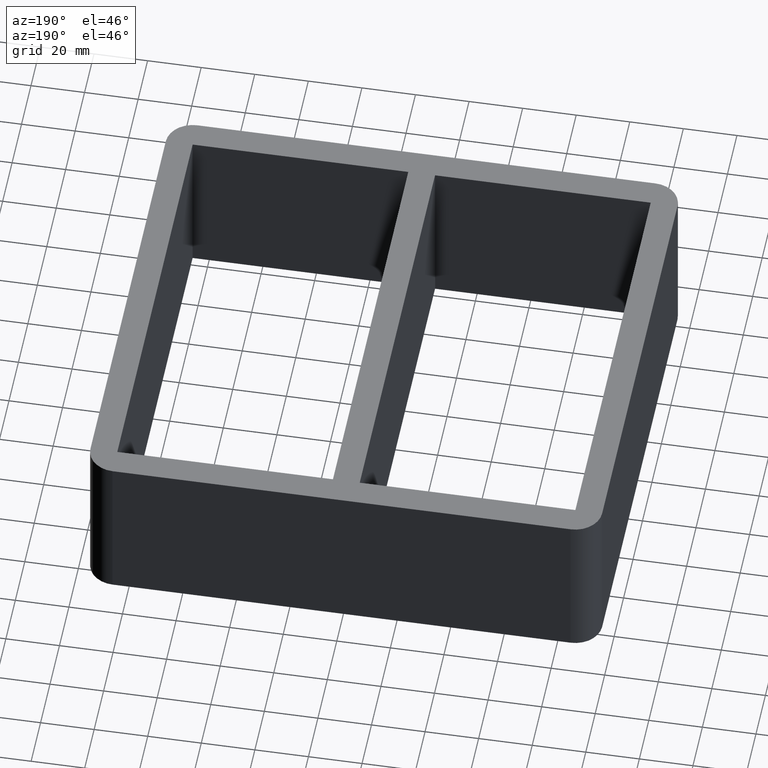
[diagram: clean part render]
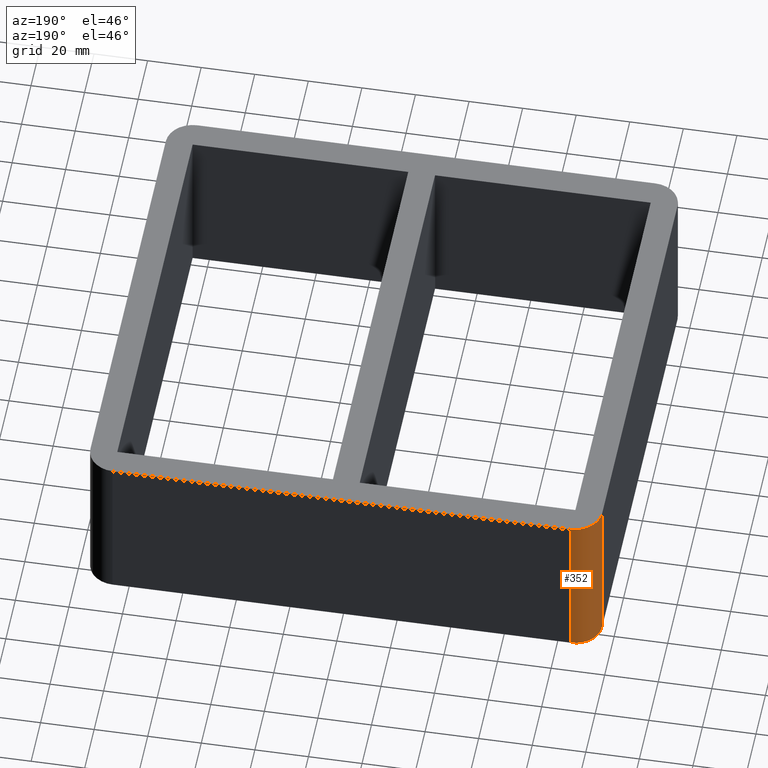
[diagram: same view with one face highlighted and labeled with its STEP entity id]
A machine part, auxiliary view. The second image highlights one B-rep face of the part: STEP entity #352.
In plain terms, the highlighted cylindrical surface (edge-blend (fillet) strip) has radius 10 mm, axis along (0, 0, -1).
Its self-contained STEP definition (entity closure, byte-faithful):
#23=CIRCLE('',#394,10.);
#24=CIRCLE('',#396,10.);
#28=CYLINDRICAL_SURFACE('',#395,10.);
#42=FACE_OUTER_BOUND('',#62,.T.);
#62=EDGE_LOOP('',(#287,#288,#289,#290));
#98=LINE('',#561,#138);
#103=LINE('',#577,#143);
#138=VECTOR('',#458,10.);
#143=VECTOR('',#473,10.);
#171=VERTEX_POINT('',#558);
#172=VERTEX_POINT('',#560);
#177=VERTEX_POINT('',#572);
#178=VERTEX_POINT('',#576);
#212=EDGE_CURVE('',#172,#171,#98,.T.);
#219=EDGE_CURVE('',#171,#177,#23,.T.);
#220=EDGE_CURVE('',#177,#178,#103,.T.);
#221=EDGE_CURVE('',#178,#172,#24,.T.);
#287=ORIENTED_EDGE('',*,*,#219,.T.);
#288=ORIENTED_EDGE('',*,*,#220,.T.);
#289=ORIENTED_EDGE('',*,*,#221,.T.);
#290=ORIENTED_EDGE('',*,*,#212,.T.);
#352=ADVANCED_FACE('',(#42),#28,.T.);
#394=AXIS2_PLACEMENT_3D('',#574,#469,#470);
#395=AXIS2_PLACEMENT_3D('',#575,#471,#472);
#396=AXIS2_PLACEMENT_3D('',#578,#474,#475);
#458=DIRECTION('',(0.,0.,-1.));
#469=DIRECTION('center_axis',(0.,0.,1.));
#470=DIRECTION('ref_axis',(-0.707106781186547,0.707106781186547,0.));
#471=DIRECTION('center_axis',(0.,0.,-1.));
#472=DIRECTION('ref_axis',(-0.707106781186547,0.707106781186547,0.));
#473=DIRECTION('',(0.,0.,1.));
#474=DIRECTION('center_axis',(0.,0.,-1.));
#475=DIRECTION('ref_axis',(-0.707106781186547,0.707106781186547,0.));
#558=CARTESIAN_POINT('',(-85.4999999999998,89.7499999999999,-60.));
#560=CARTESIAN_POINT('',(-85.4999999999998,89.7499999999999,0.));
#561=CARTESIAN_POINT('',(-85.4999999999998,89.7499999999999,0.));
#572=CARTESIAN_POINT('',(-95.4999999999998,79.7499999999999,-60.));
#574=CARTESIAN_POINT('Origin',(-85.4999999999998,79.7499999999999,-60.));
#575=CARTESIAN_POINT('Origin',(-85.4999999999998,79.7499999999999,0.));
#576=CARTESIAN_POINT('',(-95.4999999999998,79.7499999999999,0.));
#577=CARTESIAN_POINT('',(-95.4999999999998,79.7499999999999,0.));
#578=CARTESIAN_POINT('Origin',(-85.4999999999998,79.7499999999999,0.));